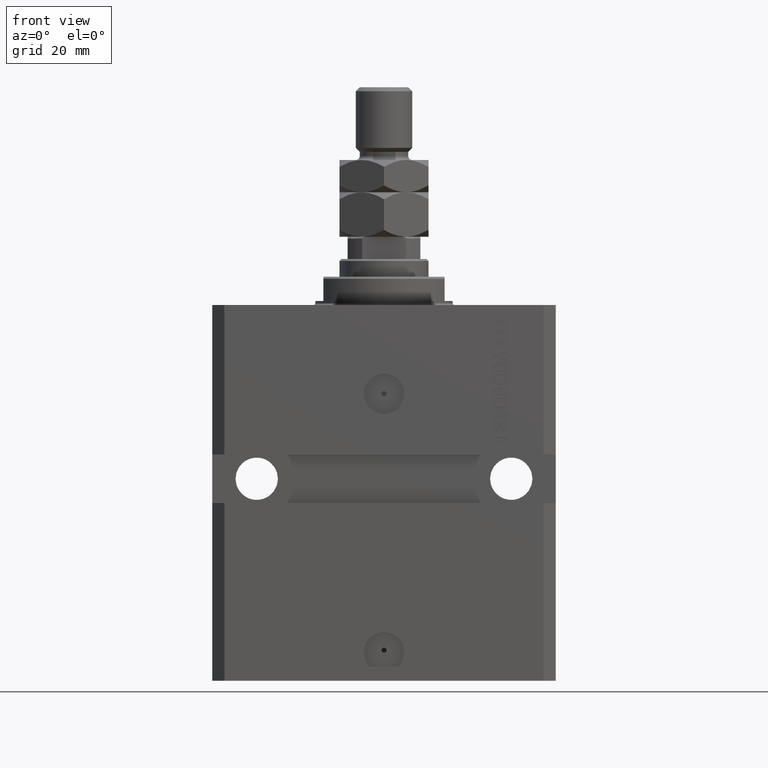
[diagram: clean part render]
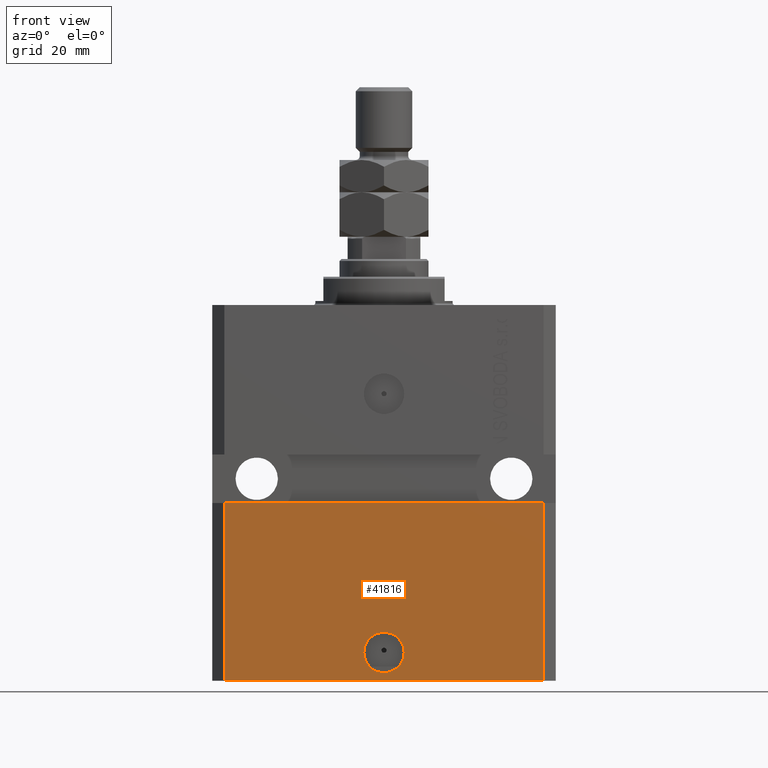
[diagram: same view with one face highlighted and labeled with its STEP entity id]
A machine part, front view. The second image highlights one B-rep face of the part: STEP entity #41816.
In plain terms, the highlighted planar face has unit normal (0, -1, 0).
Its self-contained STEP definition (entity closure, byte-faithful):
#1014 = VECTOR ( 'NONE', #34079, 1000.000000000000000 ) ;
#1354 = ORIENTED_EDGE ( 'NONE', *, *, #21053, .T. ) ;
#1941 = DIRECTION ( 'NONE',  ( 1.000000000000000000, 0.000000000000000000, 0.000000000000000000 ) ) ;
#2018 = CIRCLE ( 'NONE', #28249, 5.000000000000006217 ) ;
#3613 = LINE ( 'NONE', #15106, #36252 ) ;
#3955 = ORIENTED_EDGE ( 'NONE', *, *, #26369, .T. ) ;
#4987 = VERTEX_POINT ( 'NONE', #36353 ) ;
#5067 = CARTESIAN_POINT ( 'NONE',  ( -39.50000000000000711, -31.50000000000000000, -93.00000000000000000 ) ) ;
#7008 = VERTEX_POINT ( 'NONE', #35941 ) ;
#7050 = CIRCLE ( 'NONE', #15295, 5.000000000000006217 ) ;
#8405 = ORIENTED_EDGE ( 'NONE', *, *, #32249, .F. ) ;
#8995 = CARTESIAN_POINT ( 'NONE',  ( -39.50000000000000711, -31.50000000000000000, -93.00000000000000000 ) ) ;
#11143 = CARTESIAN_POINT ( 'NONE',  ( 39.50000000000001421, -31.49999999999999289, -48.99999999999999289 ) ) ;
#14004 = CARTESIAN_POINT ( 'NONE',  ( -39.50000000000000711, -31.50000000000000000, -93.00000000000000000 ) ) ;
#14187 = DIRECTION ( 'NONE',  ( 0.000000000000000000, 0.000000000000000000, 1.000000000000000000 ) ) ;
#15106 = CARTESIAN_POINT ( 'NONE',  ( 39.50000000000000711, -31.50000000000000000, -93.00000000000000000 ) ) ;
#15295 = AXIS2_PLACEMENT_3D ( 'NONE', #23272, #34073, #1941 ) ;
#16578 = LINE ( 'NONE', #14004, #43775 ) ;
#17770 = ORIENTED_EDGE ( 'NONE', *, *, #36978, .F. ) ;
#19142 = FACE_OUTER_BOUND ( 'NONE', #38125, .T. ) ;
#19668 = VERTEX_POINT ( 'NONE', #11143 ) ;
#20654 = EDGE_CURVE ( 'NONE', #4987, #45832, #16578, .T. ) ;
#21053 = EDGE_CURVE ( 'NONE', #30093, #19668, #3613, .T. ) ;
#21522 = CARTESIAN_POINT ( 'NONE',  ( 0.000000000000000000, -31.50000000000000000, -86.00000000000000000 ) ) ;
#23272 = CARTESIAN_POINT ( 'NONE',  ( 0.000000000000000000, -31.50000000000000000, -86.00000000000000000 ) ) ;
#23824 = DIRECTION ( 'NONE',  ( 0.000000000000000000, 0.000000000000000000, 1.000000000000000000 ) ) ;
#23930 = ORIENTED_EDGE ( 'NONE', *, *, #20654, .F. ) ;
#25395 = EDGE_LOOP ( 'NONE', ( #8405, #30968 ) ) ;
#25678 = CARTESIAN_POINT ( 'NONE',  ( -5.000000000000006217, -31.50000000000000000, -86.00000000000000000 ) ) ;
#26369 = EDGE_CURVE ( 'NONE', #4987, #30093, #33168, .T. ) ;
#28249 = AXIS2_PLACEMENT_3D ( 'NONE', #21522, #31609, #45938 ) ;
#29053 = VECTOR ( 'NONE', #46324, 1000.000000000000000 ) ;
#29688 = PLANE ( 'NONE',  #35929 ) ;
#30093 = VERTEX_POINT ( 'NONE', #31359 ) ;
#30509 = EDGE_CURVE ( 'NONE', #31911, #7008, #7050, .T. ) ;
#30618 = CARTESIAN_POINT ( 'NONE',  ( -39.50000000000000000, -31.50000000000000711, -48.99999999999999289 ) ) ;
#30968 = ORIENTED_EDGE ( 'NONE', *, *, #30509, .F. ) ;
#31359 = CARTESIAN_POINT ( 'NONE',  ( 39.50000000000000711, -31.50000000000000000, -93.00000000000000000 ) ) ;
#31609 = DIRECTION ( 'NONE',  ( 1.176083712526788232E-16, -1.000000000000000000, 0.000000000000000000 ) ) ;
#31911 = VERTEX_POINT ( 'NONE', #25678 ) ;
#32249 = EDGE_CURVE ( 'NONE', #7008, #31911, #2018, .T. ) ;
#32528 = DIRECTION ( 'NONE',  ( 0.000000000000000000, -0.000000000000000000, -1.000000000000000000 ) ) ;
#33168 = LINE ( 'NONE', #8995, #1014 ) ;
#34073 = DIRECTION ( 'NONE',  ( 1.176083712526788232E-16, -1.000000000000000000, 0.000000000000000000 ) ) ;
#34079 = DIRECTION ( 'NONE',  ( 1.000000000000000000, 0.000000000000000000, 0.000000000000000000 ) ) ;
#35929 = AXIS2_PLACEMENT_3D ( 'NONE', #5067, #40263, #32528 ) ;
#35941 = CARTESIAN_POINT ( 'NONE',  ( 5.000000000000006217, -31.50000000000000000, -86.00000000000000000 ) ) ;
#36252 = VECTOR ( 'NONE', #14187, 1000.000000000000000 ) ;
#36353 = CARTESIAN_POINT ( 'NONE',  ( -39.50000000000000711, -31.50000000000000000, -93.00000000000000000 ) ) ;
#36978 = EDGE_CURVE ( 'NONE', #45832, #19668, #39033, .T. ) ;
#37181 = FACE_BOUND ( 'NONE', #25395, .T. ) ;
#38125 = EDGE_LOOP ( 'NONE', ( #17770, #23930, #3955, #1354 ) ) ;
#39033 = LINE ( 'NONE', #45376, #29053 ) ;
#40263 = DIRECTION ( 'NONE',  ( 0.000000000000000000, -1.000000000000000000, 0.000000000000000000 ) ) ;
#41816 = ADVANCED_FACE ( 'NONE', ( #37181, #19142 ), #29688, .T. ) ;
#43775 = VECTOR ( 'NONE', #23824, 1000.000000000000000 ) ;
#45376 = CARTESIAN_POINT ( 'NONE',  ( -42.50000000000000000, -31.50000000000000711, -48.99999999999999289 ) ) ;
#45832 = VERTEX_POINT ( 'NONE', #30618 ) ;
#45938 = DIRECTION ( 'NONE',  ( 1.000000000000000000, 0.000000000000000000, 0.000000000000000000 ) ) ;
#46324 = DIRECTION ( 'NONE',  ( 1.000000000000000000, 1.632680918566406300E-16, 0.000000000000000000 ) ) ;